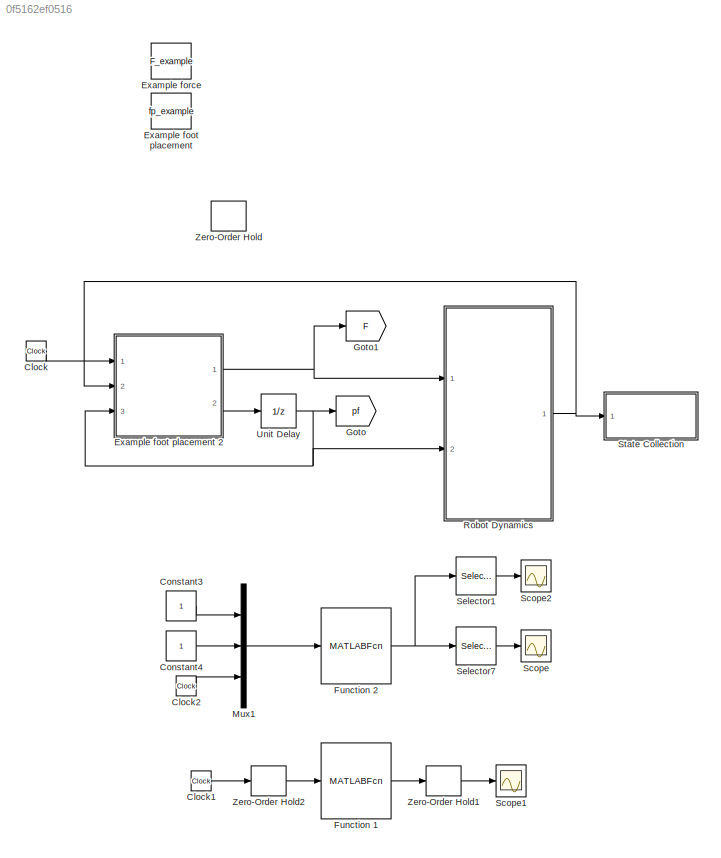
MODEL slx_0f5162ef0516
KIND model
CONFIG AbsTol = auto
CONFIG EnableMultiTasking = off
CONFIG FixedStep = 0.001
CONFIG MaxStep = auto
CONFIG MinStep = auto
CONFIG RelTol = 1e-3
CONFIG SampleTimeConstraint = Unconstrained
CONFIG SolverName = FixedStepAuto
CONFIG StartTime = 0.0
CONFIG StopTime = 10.0
BLOCK [Clock] Clock
  Commented = on
BLOCK [Clock] Clock1
  Decimation = 10000
BLOCK [Clock] Clock2
  Decimation = 10000
BLOCK [Constant] Constant3
BLOCK [Constant] Constant4
BLOCK [Constant] Example foot placement
  Commented = on
  Value = fp_example
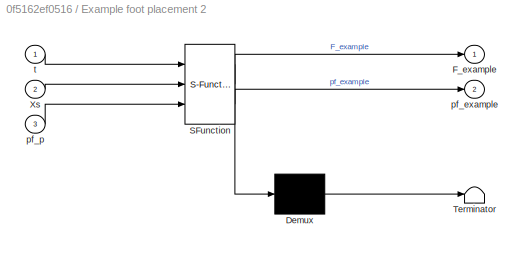
BLOCK [SubSystem] Example foot placement 2
  Commented = on
  ErrorFcn = Stateflow.Translate.translate
  PermitHierarchicalResolution = ExplicitOnly
  Ports = [3, 2]
  RequestExecContextInheritance = off
  SFBlockType = MATLAB Function
  TreatAsAtomicUnit = on
BLOCK [Demux] Example foot placement 2/ Demux 
  Outputs = 1
  Ports = [1, 1]
BLOCK [S-Function] Example foot placement 2/ SFunction 
  EnableBusSupport = on
  FunctionName = sf_sfun
  PortCounts = [3 3]
  Ports = [3, 3]
  SFcnIsStateOwnerBlock = off
  SFunctionDeploymentMode = off
  Tag = Stateflow S-Function 2
BLOCK [Terminator] Example foot placement 2/ Terminator 
BLOCK [Outport] Example foot placement 2/F_example
BLOCK [Inport] Example foot placement 2/Xs
  Port = 2
BLOCK [Outport] Example foot placement 2/pf_example
  Port = 2
BLOCK [Inport] Example foot placement 2/pf_p
  Port = 3
BLOCK [Inport] Example foot placement 2/t
BLOCK [Constant] Example force
  Commented = on
  Value = F_example
BLOCK [MATLABFcn] Function 1
  MATLABFcn = fcn1(u(1))
  Output1D = off
  OutputDimensions = [1 1]
  OutputSignalType = real
  Ports = [1, 1]
BLOCK [MATLABFcn] Function 2
  MATLABFcn = fcn2(u(1:3))
  Output1D = off
  OutputDimensions = [5 1]
  OutputSignalType = real
  Ports = [1, 1]
BLOCK [Goto] Goto
  Commented = on
  GotoTag = pf
  TagVisibility = global
BLOCK [Goto] Goto1
  Commented = on
  GotoTag = F
  TagVisibility = global
BLOCK [Mux] Mux1
  DisplayOption = bar
  Inputs = 3
  NameLocation = left
  Ports = [3, 1]
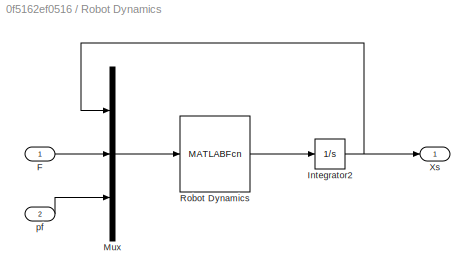
BLOCK [SubSystem] Robot Dynamics
  Commented = on
  Ports = [2, 1]
  RequestExecContextInheritance = off
BLOCK [Inport] Robot Dynamics/F
BLOCK [Integrator] Robot Dynamics/Integrator2
  InitialCondition = Xs0
  Ports = [1, 1]
BLOCK [Mux] Robot Dynamics/Mux
  DisplayOption = bar
  Inputs = 3
  Ports = [3, 1]
BLOCK [MATLABFcn] Robot Dynamics/Robot Dynamics
  MATLABFcn = robotDynamics(u(1:18), u(19:30), u(31:42))
  Output1D = off
  OutputDimensions = [18 1]
  OutputSignalType = real
  Ports = [1, 1]
BLOCK [Outport] Robot Dynamics/Xs
BLOCK [Inport] Robot Dynamics/pf
  Port = 2
BLOCK [Scope] Scope
  Floating = off
  NumInputPorts = 1
  Ports = [1]
  ScopeSpecificationString = Simulink.scopes.TimeScopeBlockCfg('CurrentConfiguration', extmgr.ConfigurationSet(extmgr.Configuration('Core','General UI',true),extmgr.Configuration('Core','Source UI',true),extmgr.Configuration('Sources','WiredSimulink',true,'DataLoggingVariableName','ScopeData1'),extmgr.Configuration('Visuals','Time Domain',true,'SerializedDisplays',{struct('MinYLimReal','-0.125','MaxYLimReal','1.125','YLabelRe...<+1545ch>
BLOCK [Scope] Scope1
  Floating = off
  NumInputPorts = 1
  Ports = [1]
  ScopeSpecificationString = Simulink.scopes.TimeScopeBlockCfg('CurrentConfiguration', extmgr.ConfigurationSet(extmgr.Configuration('Core','General UI',true),extmgr.Configuration('Core','Source UI',true),extmgr.Configuration('Sources','WiredSimulink',true,'DataLoggingVariableName','ScopeData2'),extmgr.Configuration('Visuals','Time Domain',true,'SerializedDisplays',{struct('MinYLimReal','-12.34375','MaxYLimReal','18.59925','YL...<+1458ch>
BLOCK [Scope] Scope2
  Floating = off
  NumInputPorts = 1
  Ports = [1]
  ScopeSpecificationString = Simulink.scopes.TimeScopeBlockCfg('CurrentConfiguration', extmgr.ConfigurationSet(extmgr.Configuration('Core','General UI',true),extmgr.Configuration('Core','Source UI',true),extmgr.Configuration('Sources','WiredSimulink',true,'DataLoggingVariableName','ScopeData3'),extmgr.Configuration('Visuals','Time Domain',true,'SerializedDisplays',{struct('MinYLimReal','-1.125','MaxYLimReal','10.125','YLabelR...<+1474ch>
BLOCK [Selector] Selector1
  IndexOptions = Index vector (dialog)
  Indices = [1]
  InputPortWidth = 5
  OutputSizes = 1
  Ports = [1, 1]
BLOCK [Selector] Selector7
  IndexOptions = Index vector (dialog)
  Indices = [2:5]
  InputPortWidth = 5
  OutputSizes = 1
  Ports = [1, 1]
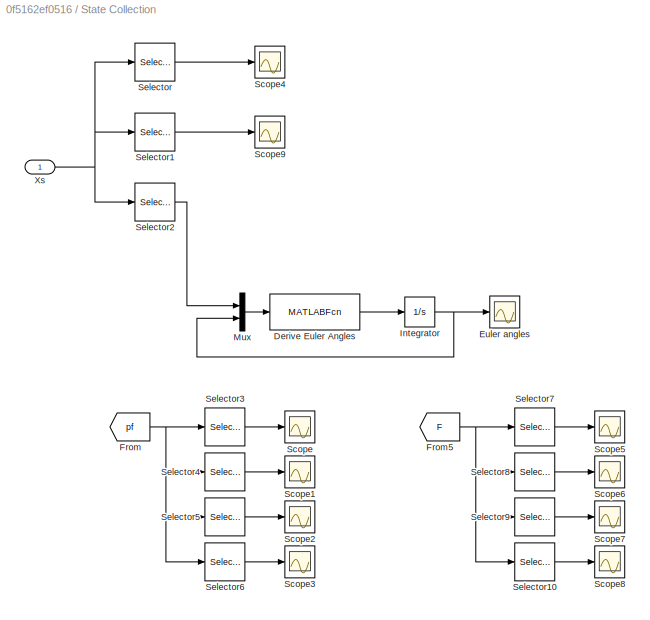
BLOCK [SubSystem] State Collection
  Commented = on
  Ports = [1]
  RequestExecContextInheritance = off
BLOCK [MATLABFcn] State Collection/Derive Euler Angles
  MATLABFcn = derivedEulerangles(u(1:3), u(4:6))
  Output1D = off
  OutputDimensions = [3 1]
  OutputSignalType = real
  Ports = [1, 1]
BLOCK [Scope] State Collection/Euler angles
  Floating = off
  NumInputPorts = 1
  Ports = [1]
  ScopeSpecificationString = Simulink.scopes.TimeScopeBlockCfg('CurrentConfiguration', extmgr.ConfigurationSet(extmgr.Configuration('Core','General UI',true),extmgr.Configuration('Core','Source UI',true),extmgr.Configuration('Sources','WiredSimulink',true,'DataLoggingVariableName','ScopeData1'),extmgr.Configuration('Visuals','Time Domain',true,'SerializedDisplays',{struct('MinYLimReal','-287.41363','MaxYLimReal','44.42516','Y...<+1484ch>
BLOCK [From] State Collection/From
  GotoTag = pf
  TagVisibility = global
BLOCK [From] State Collection/From5
  GotoTag = F
  TagVisibility = global
BLOCK [Integrator] State Collection/Integrator
  InitialCondition = RPY0
  Ports = [1, 1]
BLOCK [Mux] State Collection/Mux
  DisplayOption = bar
  Inputs = 2
  Ports = [2, 1]
BLOCK [Scope] State Collection/Scope
  Floating = off
  NumInputPorts = 1
  Ports = [1]
  ScopeSpecificationString = Simulink.scopes.TimeScopeBlockCfg('CurrentConfiguration', extmgr.ConfigurationSet(extmgr.Configuration('Core','General UI',true),extmgr.Configuration('Core','Source UI',true),extmgr.Configuration('Sources','WiredSimulink',true,'DataLoggingVariableName','ScopeData2'),extmgr.Configuration('Visuals','Time Domain',true,'SerializedDisplays',{struct('MinYLimReal','-0.1815','MaxYLimReal','0.3535','YLabel...<+1596ch>
BLOCK [Scope] State Collection/Scope1
  Floating = off
  NumInputPorts = 1
  Ports = [1]
  ScopeSpecificationString = Simulink.scopes.TimeScopeBlockCfg('CurrentConfiguration', extmgr.ConfigurationSet(extmgr.Configuration('Core','General UI',true),extmgr.Configuration('Core','Source UI',true),extmgr.Configuration('Sources','WiredSimulink',true,'DataLoggingVariableName','ScopeData3'),extmgr.Configuration('Visuals','Time Domain',true,'SerializedDisplays',{struct('MinYLimReal','-1.70197','MaxYLimReal','13.31772','YLa...<+1402ch>
BLOCK [Scope] State Collection/Scope2
  Floating = off
  NumInputPorts = 1
  Ports = [1]
  ScopeSpecificationString = Simulink.scopes.TimeScopeBlockCfg('CurrentConfiguration', extmgr.ConfigurationSet(extmgr.Configuration('Core','General UI',true),extmgr.Configuration('Core','Source UI',true),extmgr.Configuration('Sources','WiredSimulink',true,'DataLoggingVariableName','ScopeData4'),extmgr.Configuration('Visuals','Time Domain',true),extmgr.Configuration('Tools','Plot Navigation',true),extmgr.Configuration('Tools',...<+40ch>
BLOCK [Scope] State Collection/Scope3
  Floating = off
  NumInputPorts = 1
  Ports = [1]
  ScopeSpecificationString = Simulink.scopes.TimeScopeBlockCfg('CurrentConfiguration', extmgr.ConfigurationSet(extmgr.Configuration('Core','General UI',true),extmgr.Configuration('Core','Source UI',true),extmgr.Configuration('Sources','WiredSimulink',true,'DataLoggingVariableName','ScopeData5'),extmgr.Configuration('Visuals','Time Domain',true),extmgr.Configuration('Tools','Plot Navigation',true),extmgr.Configuration('Tools',...<+40ch>
BLOCK [Scope] State Collection/Scope4
  Floating = off
  NumInputPorts = 1
  Ports = [1]
  ScopeSpecificationString = Simulink.scopes.TimeScopeBlockCfg('CurrentConfiguration', extmgr.ConfigurationSet(extmgr.Configuration('Core','General UI',true),extmgr.Configuration('Core','Source UI',true),extmgr.Configuration('Sources','WiredSimulink',true,'DataLoggingVariableName','ScopeData1'),extmgr.Configuration('Visuals','Time Domain',true,'SerializedDisplays',{struct('MinYLimReal','-1.00000','MaxYLimReal','1.00000','YLab...<+1418ch>
BLOCK [Scope] State Collection/Scope5
  Floating = off
  NumInputPorts = 1
  Ports = [1]
  ScopeSpecificationString = Simulink.scopes.TimeScopeBlockCfg('CurrentConfiguration', extmgr.ConfigurationSet(extmgr.Configuration('Core','General UI',true),extmgr.Configuration('Core','Source UI',true),extmgr.Configuration('Sources','WiredSimulink',true,'DataLoggingVariableName','ScopeData2'),extmgr.Configuration('Visuals','Time Domain',true,'SerializedDisplays',{struct('MinYLimReal','-26.3375','MaxYLimReal','237.0375','YLa...<+1851ch>
BLOCK [Scope] State Collection/Scope6
  Floating = off
  NumInputPorts = 1
  Ports = [1]
  ScopeSpecificationString = Simulink.scopes.TimeScopeBlockCfg('CurrentConfiguration', extmgr.ConfigurationSet(extmgr.Configuration('Core','General UI',true),extmgr.Configuration('Core','Source UI',true),extmgr.Configuration('Sources','WiredSimulink',true,'DataLoggingVariableName','ScopeData3'),extmgr.Configuration('Visuals','Time Domain',true,'SerializedDisplays',{struct('MinYLimReal','-26.3375','MaxYLimReal','237.0375','YLa...<+1433ch>
BLOCK [Scope] State Collection/Scope7
  Floating = off
  NumInputPorts = 1
  Ports = [1]
  ScopeSpecificationString = Simulink.scopes.TimeScopeBlockCfg('CurrentConfiguration', extmgr.ConfigurationSet(extmgr.Configuration('Core','General UI',true),extmgr.Configuration('Core','Source UI',true),extmgr.Configuration('Sources','WiredSimulink',true,'DataLoggingVariableName','ScopeData4'),extmgr.Configuration('Visuals','Time Domain',true,'SerializedDisplays',{struct('MinYLimReal','-26.3375','MaxYLimReal','237.0375','YLa...<+1400ch>
BLOCK [Scope] State Collection/Scope8
  Floating = off
  NumInputPorts = 1
  Ports = [1]
  ScopeSpecificationString = Simulink.scopes.TimeScopeBlockCfg('CurrentConfiguration', extmgr.ConfigurationSet(extmgr.Configuration('Core','General UI',true),extmgr.Configuration('Core','Source UI',true),extmgr.Configuration('Sources','WiredSimulink',true,'DataLoggingVariableName','ScopeData5'),extmgr.Configuration('Visuals','Time Domain',true),extmgr.Configuration('Tools','Plot Navigation',true),extmgr.Configuration('Tools',...<+40ch>
BLOCK [Scope] State Collection/Scope9
  Floating = off
  NumInputPorts = 1
  Ports = [1]
  ScopeSpecificationString = Simulink.scopes.TimeScopeBlockCfg('CurrentConfiguration', extmgr.ConfigurationSet(extmgr.Configuration('Core','General UI',true),extmgr.Configuration('Core','Source UI',true),extmgr.Configuration('Sources','WiredSimulink',true,'DataLoggingVariableName','ScopeData6'),extmgr.Configuration('Visuals','Time Domain',true,'SerializedDisplays',{struct('MinYLimReal','-1.00000','MaxYLimReal','1.00000','YLab...<+1396ch>
BLOCK [Selector] State Collection/Selector
  IndexOptions = Index vector (dialog)
  Indices = [1:3]
  InputPortWidth = 18
  OutputSizes = 1
  Ports = [1, 1]
BLOCK [Selector] State Collection/Selector1
  IndexOptions = Index vector (dialog)
  Indices = [4:6]
  InputPortWidth = 18
  OutputSizes = 1
  Ports = [1, 1]
BLOCK [Selector] State Collection/Selector10
  IndexOptions = Index vector (dialog)
  Indices = [10:12]
  InputPortWidth = 12
  OutputSizes = 1
  Ports = [1, 1]
BLOCK [Selector] State Collection/Selector2
  IndexOptions = Index vector (dialog)
  Indices = [7:9]
  InputPortWidth = 18
  OutputSizes = 1
  Ports = [1, 1]
BLOCK [Selector] State Collection/Selector3
  IndexOptions = Index vector (dialog)
  Indices = [1:3]
  InputPortWidth = 12
  OutputSizes = 1
  Ports = [1, 1]
BLOCK [Selector] State Collection/Selector4
  IndexOptions = Index vector (dialog)
  Indices = [4:6]
  InputPortWidth = 12
  OutputSizes = 1
  Ports = [1, 1]
BLOCK [Selector] State Collection/Selector5
  IndexOptions = Index vector (dialog)
  Indices = [7:9]
  InputPortWidth = 12
  OutputSizes = 1
  Ports = [1, 1]
BLOCK [Selector] State Collection/Selector6
  IndexOptions = Index vector (dialog)
  Indices = [10:12]
  InputPortWidth = 12
  OutputSizes = 1
  Ports = [1, 1]
BLOCK [Selector] State Collection/Selector7
  IndexOptions = Index vector (dialog)
  Indices = [1:3]
  InputPortWidth = 12
  OutputSizes = 1
  Ports = [1, 1]
BLOCK [Selector] State Collection/Selector8
  IndexOptions = Index vector (dialog)
  Indices = [4:6]
  InputPortWidth = 12
  OutputSizes = 1
  Ports = [1, 1]
BLOCK [Selector] State Collection/Selector9
  IndexOptions = Index vector (dialog)
  Indices = [7:9]
  InputPortWidth = 12
  OutputSizes = 1
  Ports = [1, 1]
BLOCK [Inport] State Collection/Xs
BLOCK [UnitDelay] Unit Delay
  Commented = on
  HasFrameUpgradeWarning = on
  InitialCondition = fp_0
  SampleTime = -1
BLOCK [ZeroOrderHold] Zero-Order Hold
  Commented = on
  SampleTime = dt_MPC
BLOCK [ZeroOrderHold] Zero-Order Hold1
  SampleTime = 0.05
BLOCK [ZeroOrderHold] Zero-Order Hold2
  SampleTime = 0.05
LINE Clock1:1 -> Zero-Order Hold2:1
LINE Clock2:1 -> Mux1:3
LINE Clock:1 -> Example foot placement 2:1
LINE Constant3:1 -> Mux1:1
LINE Constant4:1 -> Mux1:2
NET Example foot placement 2:1 -> Goto1:1, Robot Dynamics:1
LINE Example foot placement 2:2 -> Unit Delay:1
LINE Function 1:1 -> Zero-Order Hold1:1
NET Function 2:1 -> Selector1:1, Selector7:1
LINE Mux1:1 -> Function 2:1
LINE Robot Dynamics/F:1 -> Robot Dynamics/Mux:2
NET Robot Dynamics/Integrator2:1 -> Robot Dynamics/Mux:1, Robot Dynamics/Xs:1
LINE Robot Dynamics/Mux:1 -> Robot Dynamics/Robot Dynamics:1
LINE Robot Dynamics/Robot Dynamics:1 -> Robot Dynamics/Integrator2:1
LINE Robot Dynamics/pf:1 -> Robot Dynamics/Mux:3
NET Robot Dynamics:1 -> Example foot placement 2:2, State Collection:1
LINE Selector1:1 -> Scope2:1
LINE Selector7:1 -> Scope:1
LINE State Collection/Derive Euler Angles:1 -> State Collection/Integrator:1
NET State Collection/From5:1 -> State Collection/Selector10:1, State Collection/Selector7:1, State Collection/Selector8:1, State Collection/Selector9:1
NET State Collection/From:1 -> State Collection/Selector3:1, State Collection/Selector4:1, State Collection/Selector5:1, State Collection/Selector6:1
NET State Collection/Integrator:1 -> State Collection/Euler angles:1, State Collection/Mux:2
LINE State Collection/Mux:1 -> State Collection/Derive Euler Angles:1
LINE State Collection/Selector10:1 -> State Collection/Scope8:1
LINE State Collection/Selector1:1 -> State Collection/Scope9:1
LINE State Collection/Selector2:1 -> State Collection/Mux:1
LINE State Collection/Selector3:1 -> State Collection/Scope:1
LINE State Collection/Selector4:1 -> State Collection/Scope1:1
LINE State Collection/Selector5:1 -> State Collection/Scope2:1
LINE State Collection/Selector6:1 -> State Collection/Scope3:1
LINE State Collection/Selector7:1 -> State Collection/Scope5:1
LINE State Collection/Selector8:1 -> State Collection/Scope6:1
LINE State Collection/Selector9:1 -> State Collection/Scope7:1
LINE State Collection/Selector:1 -> State Collection/Scope4:1
NET State Collection/Xs:1 -> State Collection/Selector1:1, State Collection/Selector2:1, State Collection/Selector:1
NET Unit Delay:1 -> Example foot placement 2:3, Goto:1, Robot Dynamics:2
LINE Zero-Order Hold1:1 -> Scope1:1
LINE Zero-Order Hold2:1 -> Function 1:1
note: NET lines group one-source signal fan-out (src -> all destinations, sorted); 1:1 wires keep LINE
CHART Example foot placement 2 states=1 transitions=1
  STATE_LABEL 'eML_blk_kernel()'
  STATE_LABEL 'SCRIPT:\nfunction [F_example, pf_example] = fcn(t, Xs, pf_p)\n% Trotting gait example\n\np = Xs(1:3); p_dot = Xs(4:6);\npf_p = reshape(pf_p, [3, 4]);\nR = reshape(Xs(10:18), [3, 3]);\n\nl_body = 0.6;\nw_body = 0.256;\n\nT_gait = 0.5;\nT_stance = T_gait/2;\n\nif mod(floor(t/T_gait), 2) == 0\n    % foot 1 and 4 are in contact\n    F_example = [R*[43*0.6/2*0; 0; 43*9.8/2]; R*[0; 0; 0]; ...\n                  R*[0; 0;...<+631ch>'
CHART  states=0 transitions=0
